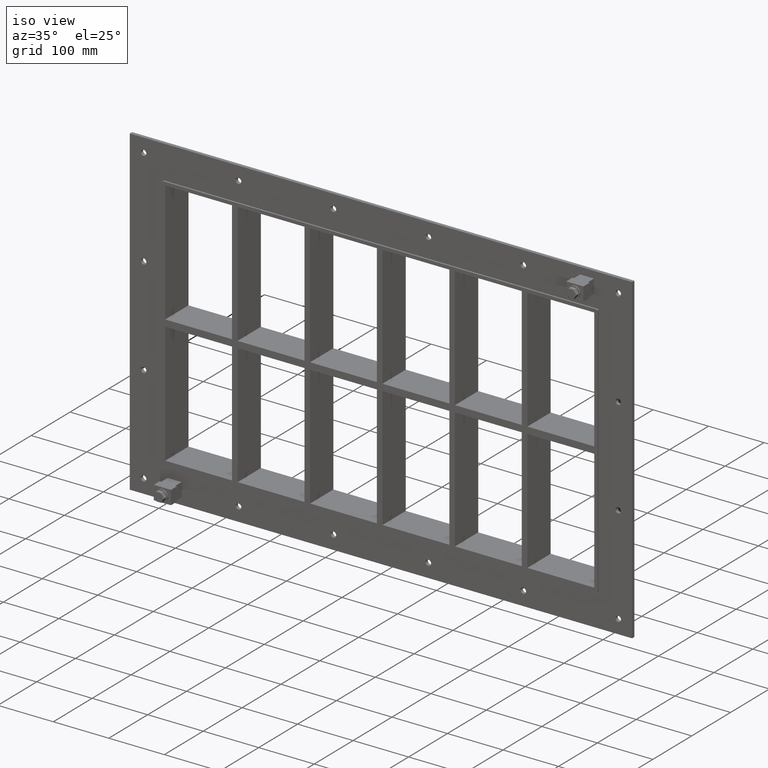
[diagram: clean part render]
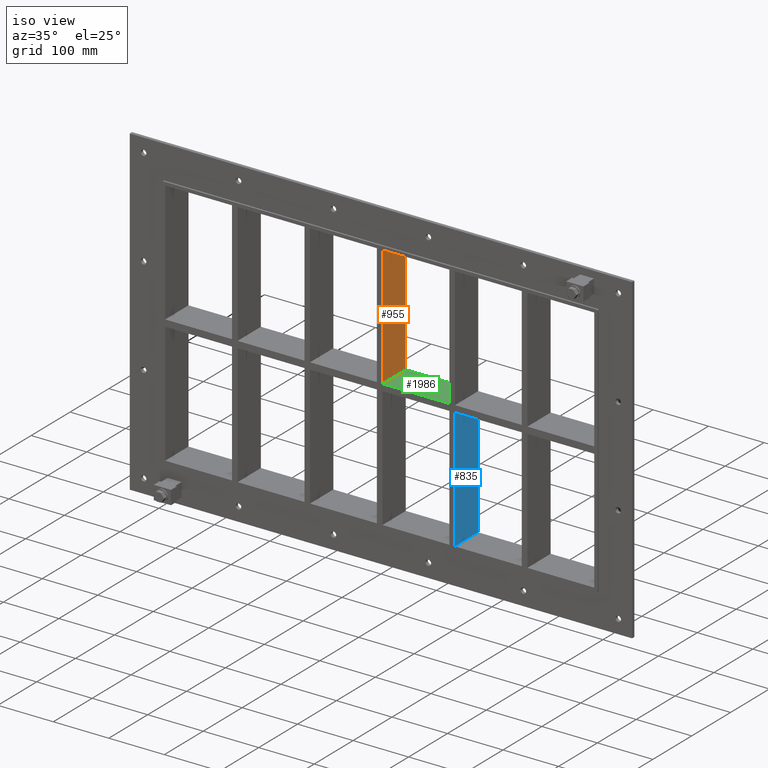
[diagram: same view with three faces highlighted in distinct colors, each labeled with its STEP entity id]
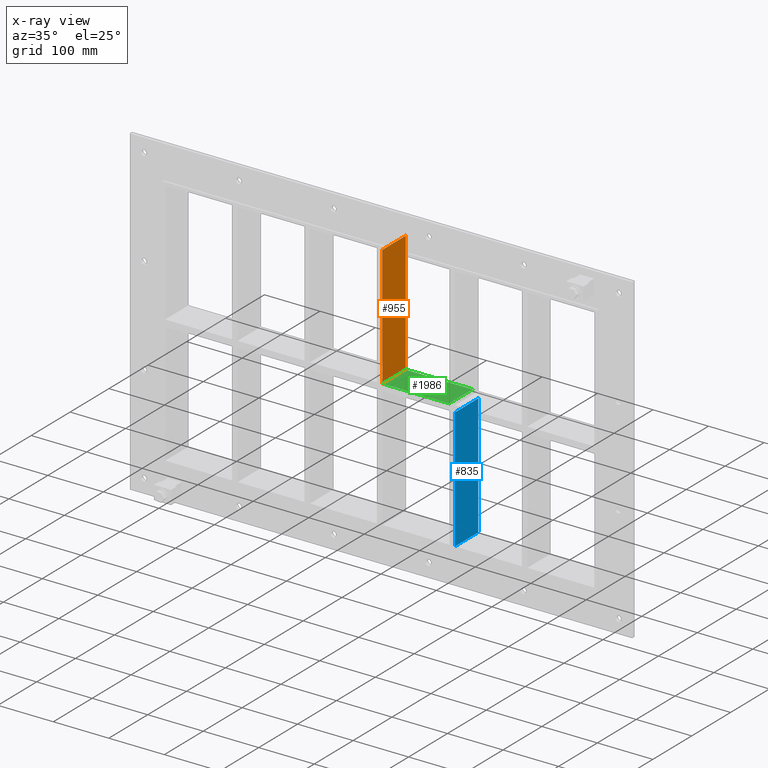
[diagram: x-ray of the same camera — body ghosted, the three highlighted faces saturated]
A machine part, iso view with three faces highlighted in distinct colors.
The next image is the same camera in x-ray (body ghosted, the three faces saturated) — at least one of them is partly hidden behind the body in this view.
Their STEP definitions:

[orange] entity #955 — the highlighted planar face has unit normal (1, 0, 0).
#916=CARTESIAN_POINT('',(4.999999999996376,-3.0,224.00000000000003));
#917=DIRECTION('',(1.0,0.0,0.0));
#918=DIRECTION('',(0.0,0.0,-1.0));
#919=AXIS2_PLACEMENT_3D('',#916,#917,#918);
#920=PLANE('',#919);
#921=CARTESIAN_POINT('',(4.999999999996376,57.0,6.000000000000227));
#922=VERTEX_POINT('',#921);
#923=CARTESIAN_POINT('',(4.999999999996376,-3.0,6.000000000000227));
#924=VERTEX_POINT('',#923);
#925=CARTESIAN_POINT('',(4.999999999996376,57.0,6.000000000000227));
#926=DIRECTION('',(0.0,-1.0,0.0));
#927=VECTOR('',#926,60.0);
#928=LINE('',#925,#927);
#929=EDGE_CURVE('',#922,#924,#928,.T.);
#930=ORIENTED_EDGE('',*,*,#929,.F.);
#931=CARTESIAN_POINT('',(4.999999999996376,57.0,224.00000000000003));
#932=VERTEX_POINT('',#931);
#933=CARTESIAN_POINT('',(4.999999999996376,57.0,224.00000000000003));
#934=DIRECTION('',(0.0,0.0,-1.0));
#935=VECTOR('',#934,217.9999999999998);
#936=LINE('',#933,#935);
#937=EDGE_CURVE('',#932,#922,#936,.T.);
#938=ORIENTED_EDGE('',*,*,#937,.F.);
#939=CARTESIAN_POINT('',(4.999999999996376,-3.0,224.00000000000003));
#940=VERTEX_POINT('',#939);
#941=CARTESIAN_POINT('',(4.999999999996376,-3.0,224.00000000000003));
#942=DIRECTION('',(0.0,1.0,0.0));
#943=VECTOR('',#942,60.000000000000007);
#944=LINE('',#941,#943);
#945=EDGE_CURVE('',#940,#932,#944,.T.);
#946=ORIENTED_EDGE('',*,*,#945,.F.);
#947=CARTESIAN_POINT('',(4.999999999996376,-3.0,224.00000000000003));
#948=DIRECTION('',(0.0,0.0,-1.0));
#949=VECTOR('',#948,217.9999999999998);
#950=LINE('',#947,#949);
#951=EDGE_CURVE('',#940,#924,#950,.T.);
#952=ORIENTED_EDGE('',*,*,#951,.T.);
#953=EDGE_LOOP('',(#930,#938,#946,#952));
#954=FACE_OUTER_BOUND('',#953,.T.);
#955=ADVANCED_FACE('',(#954),#920,.T.);

[blue] entity #835 — the highlighted planar face has unit normal (1, 0, 0).
#796=CARTESIAN_POINT('',(135.49999999999642,-3.0,224.00000000000003));
#797=DIRECTION('',(1.0,0.0,0.0));
#798=DIRECTION('',(0.0,0.0,-1.0));
#799=AXIS2_PLACEMENT_3D('',#796,#797,#798);
#800=PLANE('',#799);
#801=CARTESIAN_POINT('',(135.49999999999642,-3.0,-6.000000000011134));
#802=VERTEX_POINT('',#801);
#803=CARTESIAN_POINT('',(135.49999999999642,57.0,-6.000000000011134));
#804=VERTEX_POINT('',#803);
#805=CARTESIAN_POINT('',(135.49999999999642,-3.0,-6.000000000011134));
#806=DIRECTION('',(0.0,1.0,0.0));
#807=VECTOR('',#806,60.0);
#808=LINE('',#805,#807);
#809=EDGE_CURVE('',#802,#804,#808,.T.);
#810=ORIENTED_EDGE('',*,*,#809,.F.);
#811=CARTESIAN_POINT('',(135.49999999999642,-3.0,-223.99999999998175));
#812=VERTEX_POINT('',#811);
#813=CARTESIAN_POINT('',(135.49999999999642,-3.0,-6.000000000011113));
#814=DIRECTION('',(0.0,0.0,-1.0));
#815=VECTOR('',#814,217.99999999997067);
#816=LINE('',#813,#815);
#817=EDGE_CURVE('',#802,#812,#816,.T.);
#818=ORIENTED_EDGE('',*,*,#817,.T.);
#819=CARTESIAN_POINT('',(135.49999999999642,57.0,-223.99999999998175));
#820=VERTEX_POINT('',#819);
#821=CARTESIAN_POINT('',(135.49999999999642,57.000000000000007,-224.00000000000003));
#822=DIRECTION('',(0.0,-1.0,0.0));
#823=VECTOR('',#822,60.000000000000007);
#824=LINE('',#821,#823);
#825=EDGE_CURVE('',#820,#812,#824,.T.);
#826=ORIENTED_EDGE('',*,*,#825,.F.);
#827=CARTESIAN_POINT('',(135.49999999999642,57.0,-6.000000000011113));
#828=DIRECTION('',(0.0,0.0,-1.0));
#829=VECTOR('',#828,217.99999999997067);
#830=LINE('',#827,#829);
#831=EDGE_CURVE('',#804,#820,#830,.T.);
#832=ORIENTED_EDGE('',*,*,#831,.F.);
#833=EDGE_LOOP('',(#810,#818,#826,#832));
#834=FACE_OUTER_BOUND('',#833,.T.);
#835=ADVANCED_FACE('',(#834),#800,.T.);

[green] entity #1986 — the highlighted planar face has unit normal (0, 0, 1).
#681=CARTESIAN_POINT('',(125.49999999999989,-3.0,6.000000000000227));
#682=VERTEX_POINT('',#681);
#683=CARTESIAN_POINT('',(125.49999999999989,57.0,6.000000000000227));
#684=VERTEX_POINT('',#683);
#685=CARTESIAN_POINT('',(125.49999999999989,-3.0,6.000000000000227));
#686=DIRECTION('',(0.0,1.0,0.0));
#687=VECTOR('',#686,60.0);
#688=LINE('',#685,#687);
#689=EDGE_CURVE('',#682,#684,#688,.T.);
#921=CARTESIAN_POINT('',(4.999999999996376,57.0,6.000000000000227));
#922=VERTEX_POINT('',#921);
#923=CARTESIAN_POINT('',(4.999999999996376,-3.0,6.000000000000227));
#924=VERTEX_POINT('',#923);
#925=CARTESIAN_POINT('',(4.999999999996376,57.0,6.000000000000227));
#926=DIRECTION('',(0.0,-1.0,0.0));
#927=VECTOR('',#926,60.0);
#928=LINE('',#925,#927);
#929=EDGE_CURVE('',#922,#924,#928,.T.);
#1397=CARTESIAN_POINT('',(4.999999999996362,-3.0,6.000000000000227));
#1398=DIRECTION('',(1.0,0.0,0.0));
#1399=VECTOR('',#1398,120.50000000000352);
#1400=LINE('',#1397,#1399);
#1401=EDGE_CURVE('',#924,#682,#1400,.T.);
#1811=CARTESIAN_POINT('',(4.999999999996362,57.0,6.000000000000227));
#1812=DIRECTION('',(1.0,0.0,0.0));
#1813=VECTOR('',#1812,120.50000000000352);
#1814=LINE('',#1811,#1813);
#1815=EDGE_CURVE('',#922,#684,#1814,.T.);
#1975=CARTESIAN_POINT('',(-386.49999999999864,-3.0,6.000000000000227));
#1976=DIRECTION('',(0.0,0.0,1.0));
#1977=DIRECTION('',(1.0,0.0,0.0));
#1978=AXIS2_PLACEMENT_3D('',#1975,#1976,#1977);
#1979=PLANE('',#1978);
#1980=ORIENTED_EDGE('',*,*,#689,.T.);
#1981=ORIENTED_EDGE('',*,*,#1815,.F.);
#1982=ORIENTED_EDGE('',*,*,#929,.T.);
#1983=ORIENTED_EDGE('',*,*,#1401,.T.);
#1984=EDGE_LOOP('',(#1980,#1981,#1982,#1983));
#1985=FACE_OUTER_BOUND('',#1984,.T.);
#1986=ADVANCED_FACE('',(#1985),#1979,.T.);